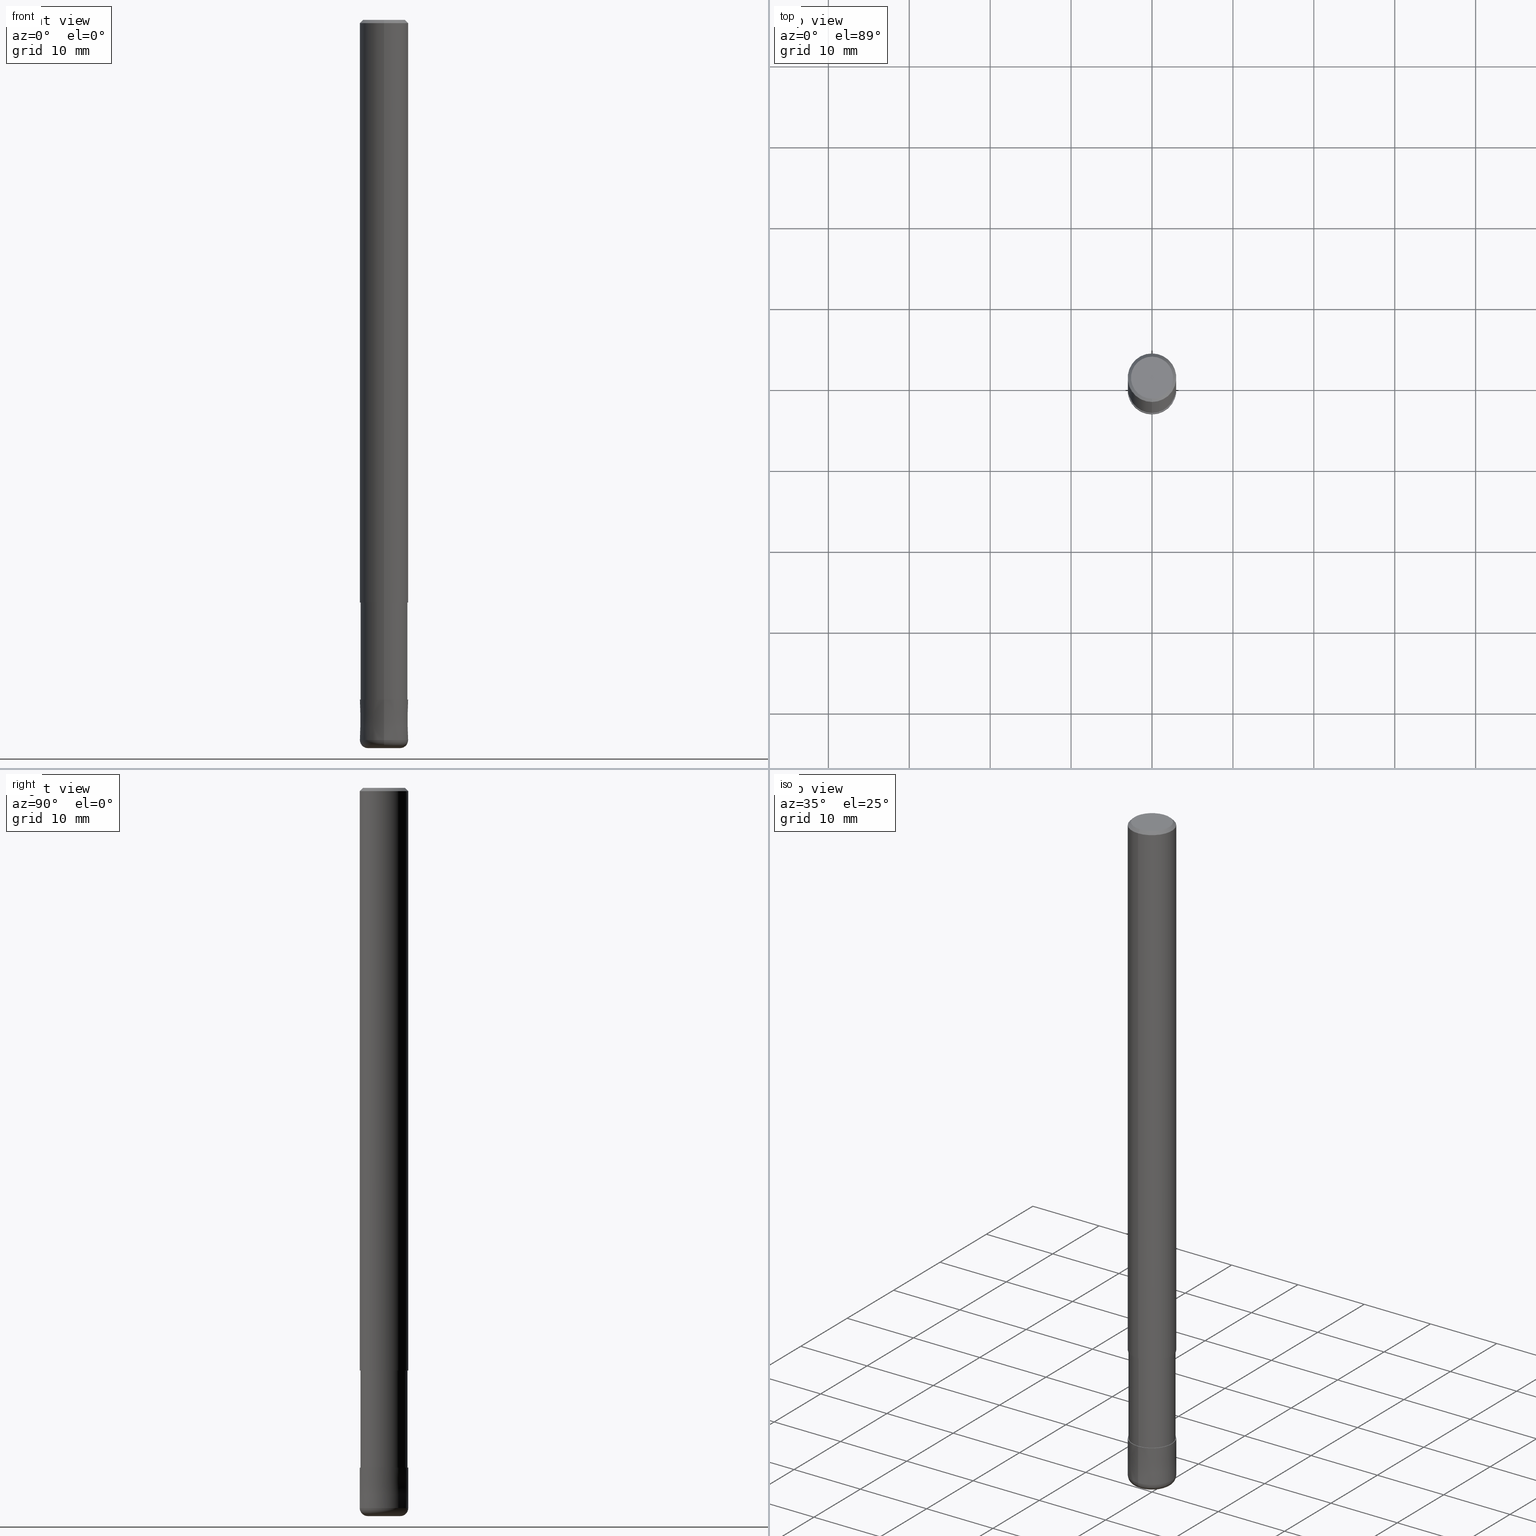
[diagram: canonical four-view strip — front | top / right | iso, engineering-drawing reading convention]
A machine part, canonical four-view strip (front | top / right | iso — engineering-drawing reading convention). The complete STEP part file that produces these views, byte-faithful:
ISO-10303-21;
HEADER;
FILE_DESCRIPTION(('no description'),'unknown implementation level');
FILE_NAME('HRRS4060-10-18-Huellk.stp','  ',('CIMSOURCE GmbH'),('CADClick - KiM GmbH - www.kimweb.de'),'unknown preprocess','ACIS','unknown authorization');
FILE_SCHEMA(('automotive_design'));
ENDSEC;
DATA;
#1=MECHANICAL_DESIGN_GEOMETRIC_PRESENTATION_REPRESENTATION(' ',(#14,#15,#16,#17,#18,#19,#20,#21,#22,#23,#24,#25,#26,#27,#28,#29,#30,#31,#32,#33,#34,#35,#36,#37,#38,#39,#40,#41,#42,#43,#44,#45,#46,#47,#48,#49,#50,#51,#52,#53,#54,#55,#56,#57,#58,#59,#60,#61,#62,#63,#64,#65,#66,#67,#68,#69,#70,#71,#72),#10);
#2=PRODUCT_DEFINITION_CONTEXT('',#73,'design');
#3=APPLICATION_PROTOCOL_DEFINITION('INTERNATIONAL STANDARD','automotive_design',1994,#73);
#4=PRODUCT_CATEGORY_RELATIONSHIP('NONE','NONE',#74,#75);
#5=SHAPE_DEFINITION_REPRESENTATION(#76,#77);
#6=PRODUCT_DEFINITION_CONTEXT('',#78,'design');
#7=APPLICATION_PROTOCOL_DEFINITION('INTERNATIONAL STANDARD','automotive_design',1994,#78);
#8=PRODUCT_CATEGORY_RELATIONSHIP('NONE','NONE',#79,#80);
#9=SHAPE_DEFINITION_REPRESENTATION(#81,#82);
#10= (GEOMETRIC_REPRESENTATION_CONTEXT(3)GLOBAL_UNCERTAINTY_ASSIGNED_CONTEXT((#85))GLOBAL_UNIT_ASSIGNED_CONTEXT((#87,#88,#89))REPRESENTATION_CONTEXT('NONE','WORKSPACE'));
#14=STYLED_ITEM('',(#91),#92);
#15=STYLED_ITEM('',(#93),#94);
#16=STYLED_ITEM('',(#95),#96);
#17=STYLED_ITEM('',(#97),#98);
#18=STYLED_ITEM('',(#99),#100);
#19=STYLED_ITEM('',(#101),#102);
#20=STYLED_ITEM('',(#103),#104);
#21=STYLED_ITEM('',(#105),#106);
#22=STYLED_ITEM('',(#107),#108);
#23=STYLED_ITEM('',(#109),#110);
#24=STYLED_ITEM('',(#111),#112);
#25=STYLED_ITEM('',(#113),#114);
#26=STYLED_ITEM('',(#115),#116);
#27=STYLED_ITEM('',(#117),#118);
#28=STYLED_ITEM('',(#119),#120);
#29=STYLED_ITEM('',(#121),#122);
#30=STYLED_ITEM('',(#123),#124);
#31=STYLED_ITEM('',(#125),#126);
#32=STYLED_ITEM('',(#127),#128);
#33=STYLED_ITEM('',(#129),#130);
#34=STYLED_ITEM('',(#131),#132);
#35=STYLED_ITEM('',(#133),#134);
#36=STYLED_ITEM('',(#135),#136);
#37=STYLED_ITEM('',(#137),#138);
#38=STYLED_ITEM('',(#139),#140);
#39=STYLED_ITEM('',(#141),#142);
#40=STYLED_ITEM('',(#143),#144);
#41=STYLED_ITEM('',(#145),#146);
#42=STYLED_ITEM('',(#147),#148);
#43=STYLED_ITEM('',(#149),#150);
#44=STYLED_ITEM('',(#151),#152);
#45=STYLED_ITEM('',(#153),#154);
#46=STYLED_ITEM('',(#155),#156);
#47=STYLED_ITEM('',(#157),#158);
#48=STYLED_ITEM('',(#159),#160);
#49=STYLED_ITEM('',(#161),#162);
#50=STYLED_ITEM('',(#163),#164);
#51=STYLED_ITEM('',(#165),#166);
#52=STYLED_ITEM('',(#167),#168);
#53=STYLED_ITEM('',(#169),#170);
#54=STYLED_ITEM('',(#171),#172);
#55=STYLED_ITEM('',(#173),#174);
#56=STYLED_ITEM('',(#175),#176);
#57=STYLED_ITEM('',(#177),#178);
#58=STYLED_ITEM('',(#179),#180);
#59=STYLED_ITEM('',(#181),#182);
#60=STYLED_ITEM('',(#183),#184);
#61=STYLED_ITEM('',(#185),#186);
#62=STYLED_ITEM('',(#187),#188);
#63=STYLED_ITEM('',(#189),#190);
#64=STYLED_ITEM('',(#191),#192);
#65=STYLED_ITEM('',(#193),#194);
#66=STYLED_ITEM('',(#195),#196);
#67=STYLED_ITEM('',(#197),#198);
#68=STYLED_ITEM('',(#199),#200);
#69=STYLED_ITEM('',(#201),#202);
#70=STYLED_ITEM('',(#203),#204);
#71=STYLED_ITEM('',(#205),#206);
#72=STYLED_ITEM('',(#207),#208);
#73=APPLICATION_CONTEXT(' ');
#74=PRODUCT_CATEGORY('part','NONE');
#75=PRODUCT_RELATED_PRODUCT_CATEGORY('detail',' ',(#209));
#76=PRODUCT_DEFINITION_SHAPE('NONE','NONE',#210);
#77=ADVANCED_BREP_SHAPE_REPRESENTATION('1',(#146,#211),#10);
#78=APPLICATION_CONTEXT(' ');
#79=PRODUCT_CATEGORY('part','NONE');
#80=PRODUCT_RELATED_PRODUCT_CATEGORY('detail',' ',(#212));
#81=PRODUCT_DEFINITION_SHAPE('NONE','NONE',#213);
#82=ADVANCED_BREP_SHAPE_REPRESENTATION('2',(#94,#214),#10);
#85=UNCERTAINTY_MEASURE_WITH_UNIT(LENGTH_MEASURE(1.0E-006),#87,'','');
#87= (CONVERSION_BASED_UNIT('MILLIMETRE',#217)LENGTH_UNIT()NAMED_UNIT(#220));
#88= (NAMED_UNIT(#222)PLANE_ANGLE_UNIT()SI_UNIT($,.RADIAN.));
#89= (NAMED_UNIT(#222)SOLID_ANGLE_UNIT()SI_UNIT($,.STERADIAN.));
#91=PRESENTATION_STYLE_ASSIGNMENT((#228));
#92=EDGE_CURVE('',#142,#110,#229,.T.);
#93=PRESENTATION_STYLE_ASSIGNMENT((#230));
#94=MANIFOLD_SOLID_BREP('2',#231);
#95=PRESENTATION_STYLE_ASSIGNMENT((#232));
#96=EDGE_CURVE('',#136,#186,#233,.T.);
#97=PRESENTATION_STYLE_ASSIGNMENT((#234));
#98=ADVANCED_FACE('',(#235),#236,.T.);
#99=PRESENTATION_STYLE_ASSIGNMENT((#237));
#100=ADVANCED_FACE('',(#238),#239,.T.);
#101=PRESENTATION_STYLE_ASSIGNMENT((#240));
#102=EDGE_CURVE('',#118,#136,#241,.T.);
#103=PRESENTATION_STYLE_ASSIGNMENT((#242));
#104=EDGE_CURVE('',#166,#116,#243,.T.);
#105=PRESENTATION_STYLE_ASSIGNMENT((#244));
#106=ADVANCED_FACE('',(#245),#246,.T.);
#107=PRESENTATION_STYLE_ASSIGNMENT((#247));
#108=EDGE_CURVE('',#120,#176,#248,.T.);
#109=PRESENTATION_STYLE_ASSIGNMENT((#249));
#110=VERTEX_POINT('',#250);
#111=PRESENTATION_STYLE_ASSIGNMENT((#251));
#112=VERTEX_POINT('',#252);
#113=PRESENTATION_STYLE_ASSIGNMENT((#253));
#114=EDGE_CURVE('',#110,#120,#254,.T.);
#115=PRESENTATION_STYLE_ASSIGNMENT((#255));
#116=VERTEX_POINT('',#256);
#117=PRESENTATION_STYLE_ASSIGNMENT((#257));
#118=VERTEX_POINT('',#258);
#119=PRESENTATION_STYLE_ASSIGNMENT((#259));
#120=VERTEX_POINT('',#260);
#121=PRESENTATION_STYLE_ASSIGNMENT((#261));
#122=EDGE_CURVE('',#166,#160,#262,.T.);
#123=PRESENTATION_STYLE_ASSIGNMENT((#263));
#124=ADVANCED_FACE('',(#264),#265,.T.);
#125=PRESENTATION_STYLE_ASSIGNMENT((#266));
#126=ADVANCED_FACE('',(#267),#268,.T.);
#127=PRESENTATION_STYLE_ASSIGNMENT((#269));
#128=EDGE_CURVE('',#176,#142,#270,.T.);
#129=PRESENTATION_STYLE_ASSIGNMENT((#271));
#130=EDGE_CURVE('',#116,#198,#272,.T.);
#131=PRESENTATION_STYLE_ASSIGNMENT((#273));
#132=EDGE_CURVE('',#112,#172,#274,.T.);
#133=PRESENTATION_STYLE_ASSIGNMENT((#275));
#134=EDGE_CURVE('',#160,#162,#276,.T.);
#135=PRESENTATION_STYLE_ASSIGNMENT((#277));
#136=VERTEX_POINT('',#278);
#137=PRESENTATION_STYLE_ASSIGNMENT((#279));
#138=ADVANCED_FACE('',(#280,#281),#282,.T.);
#139=PRESENTATION_STYLE_ASSIGNMENT((#283));
#140=EDGE_CURVE('',#160,#166,#284,.T.);
#141=PRESENTATION_STYLE_ASSIGNMENT((#285));
#142=VERTEX_POINT('',#286);
#143=PRESENTATION_STYLE_ASSIGNMENT((#287));
#144=ADVANCED_FACE('',(#288),#289,.T.);
#145=PRESENTATION_STYLE_ASSIGNMENT((#290));
#146=MANIFOLD_SOLID_BREP('1',#291);
#147=PRESENTATION_STYLE_ASSIGNMENT((#292));
#148=EDGE_CURVE('',#152,#172,#293,.T.);
#149=PRESENTATION_STYLE_ASSIGNMENT((#294));
#150=EDGE_CURVE('',#198,#160,#295,.T.);
#151=PRESENTATION_STYLE_ASSIGNMENT((#296));
#152=VERTEX_POINT('',#297);
#153=PRESENTATION_STYLE_ASSIGNMENT((#298));
#154=ADVANCED_FACE('',(#299),#300,.T.);
#155=PRESENTATION_STYLE_ASSIGNMENT((#301));
#156=ADVANCED_FACE('',(#302),#303,.T.);
#157=PRESENTATION_STYLE_ASSIGNMENT((#304));
#158=EDGE_CURVE('',#174,#166,#305,.T.);
#159=PRESENTATION_STYLE_ASSIGNMENT((#306));
#160=VERTEX_POINT('',#307);
#161=PRESENTATION_STYLE_ASSIGNMENT((#308));
#162=VERTEX_POINT('',#309);
#163=PRESENTATION_STYLE_ASSIGNMENT((#310));
#164=EDGE_CURVE('',#112,#186,#311,.T.);
#165=PRESENTATION_STYLE_ASSIGNMENT((#312));
#166=VERTEX_POINT('',#313);
#167=PRESENTATION_STYLE_ASSIGNMENT((#314));
#168=ADVANCED_FACE('',(#315),#316,.T.);
#169=PRESENTATION_STYLE_ASSIGNMENT((#317));
#170=EDGE_CURVE('',#186,#152,#318,.T.);
#171=PRESENTATION_STYLE_ASSIGNMENT((#319));
#172=VERTEX_POINT('',#320);
#173=PRESENTATION_STYLE_ASSIGNMENT((#321));
#174=VERTEX_POINT('',#322);
#175=PRESENTATION_STYLE_ASSIGNMENT((#323));
#176=VERTEX_POINT('',#324);
#177=PRESENTATION_STYLE_ASSIGNMENT((#325));
#178=ADVANCED_FACE('',(#326),#327,.T.);
#179=PRESENTATION_STYLE_ASSIGNMENT((#328));
#180=EDGE_CURVE('',#174,#162,#329,.T.);
#181=PRESENTATION_STYLE_ASSIGNMENT((#330));
#182=EDGE_CURVE('',#152,#186,#331,.T.);
#183=PRESENTATION_STYLE_ASSIGNMENT((#332));
#184=EDGE_CURVE('',#162,#174,#333,.T.);
#185=PRESENTATION_STYLE_ASSIGNMENT((#334));
#186=VERTEX_POINT('',#335);
#187=PRESENTATION_STYLE_ASSIGNMENT((#336));
#188=ADVANCED_FACE('',(#337),#338,.T.);
#189=PRESENTATION_STYLE_ASSIGNMENT((#339));
#190=ADVANCED_FACE('',(#340),#341,.T.);
#191=PRESENTATION_STYLE_ASSIGNMENT((#342));
#192=EDGE_CURVE('',#176,#120,#343,.T.);
#193=PRESENTATION_STYLE_ASSIGNMENT((#344));
#194=ADVANCED_FACE('',(#345),#346,.T.);
#195=PRESENTATION_STYLE_ASSIGNMENT((#347));
#196=ADVANCED_FACE('',(#348),#349,.T.);
#197=PRESENTATION_STYLE_ASSIGNMENT((#350));
#198=VERTEX_POINT('',#351);
#199=PRESENTATION_STYLE_ASSIGNMENT((#352));
#200=EDGE_CURVE('',#198,#116,#353,.T.);
#201=PRESENTATION_STYLE_ASSIGNMENT((#354));
#202=EDGE_CURVE('',#152,#118,#355,.T.);
#203=PRESENTATION_STYLE_ASSIGNMENT((#356));
#204=EDGE_CURVE('',#110,#142,#357,.T.);
#205=PRESENTATION_STYLE_ASSIGNMENT((#358));
#206=EDGE_CURVE('',#172,#112,#359,.T.);
#207=PRESENTATION_STYLE_ASSIGNMENT((#360));
#208=EDGE_CURVE('',#136,#118,#361,.T.);
#209=PRODUCT('1','1','PART-1-DESC',(#362));
#210=PRODUCT_DEFINITION('NONE','NONE',#363,#2);
#211=AXIS2_PLACEMENT_3D('',#364,#365,#366);
#212=PRODUCT('2','2','PART-2-DESC',(#367));
#213=PRODUCT_DEFINITION('NONE','NONE',#368,#6);
#214=AXIS2_PLACEMENT_3D('',#369,#370,#371);
#217=LENGTH_MEASURE_WITH_UNIT(LENGTH_MEASURE(1.0),#372);
#220=DIMENSIONAL_EXPONENTS(1.0,0.0,0.0,0.0,0.0,0.0,0.0);
#222=DIMENSIONAL_EXPONENTS(0.0,0.0,0.0,0.0,0.0,0.0,0.0);
#228=CURVE_STYLE('',#373,POSITIVE_LENGTH_MEASURE(1.0E-006),#374);
#229=CIRCLE('',#375,2.90995);
#230=SURFACE_STYLE_USAGE(.BOTH.,#376);
#231=CLOSED_SHELL('',(#168,#144,#178,#124,#100,#194));
#232=CURVE_STYLE('',#377,POSITIVE_LENGTH_MEASURE(1.0E-006),#378);
#233=LINE('',#379,#380);
#234=SURFACE_STYLE_USAGE(.BOTH.,#381);
#235=FACE_OUTER_BOUND('',#382,.T.);
#236=PLANE('',#383);
#237=SURFACE_STYLE_USAGE(.BOTH.,#384);
#238=FACE_OUTER_BOUND('',#385,.T.);
#239=TOROIDAL_SURFACE('',#386,2.0,1.0);
#240=CURVE_STYLE('',#387,POSITIVE_LENGTH_MEASURE(1.0E-006),#388);
#241=CIRCLE('',#389,2.9999);
#242=CURVE_STYLE('',#390,POSITIVE_LENGTH_MEASURE(1.0E-006),#391);
#243=LINE('',#392,#393);
#244=SURFACE_STYLE_USAGE(.BOTH.,#394);
#245=FACE_OUTER_BOUND('',#395,.T.);
#246=CYLINDRICAL_SURFACE('',#396,2.90995);
#247=CURVE_STYLE('',#397,POSITIVE_LENGTH_MEASURE(1.0E-006),#398);
#248=CIRCLE('',#399,2.90995);
#249=POINT_STYLE(' ',#400,POSITIVE_LENGTH_MEASURE(1.0E-006),#401);
#250=CARTESIAN_POINT('',(0.0,2.90995,-72.0));
#251=POINT_STYLE(' ',#402,POSITIVE_LENGTH_MEASURE(1.0E-006),#403);
#252=CARTESIAN_POINT('',(0.0,2.0,-90.0));
#253=CURVE_STYLE('',#404,POSITIVE_LENGTH_MEASURE(1.0E-006),#405);
#254=LINE('',#406,#407);
#255=POINT_STYLE(' ',#408,POSITIVE_LENGTH_MEASURE(1.0E-006),#409);
#256=CARTESIAN_POINT('',(3.18397651993818E-016,-2.6,0.0));
#257=POINT_STYLE(' ',#410,POSITIVE_LENGTH_MEASURE(1.0E-006),#411);
#258=CARTESIAN_POINT('',(3.67369660083175E-016,-2.9999,-84.0));
#259=POINT_STYLE(' ',#412,POSITIVE_LENGTH_MEASURE(1.0E-006),#413);
#260=CARTESIAN_POINT('',(0.0,2.90995,-84.0));
#261=CURVE_STYLE('',#414,POSITIVE_LENGTH_MEASURE(1.0E-006),#415);
#262=CIRCLE('',#416,3.0);
#263=SURFACE_STYLE_USAGE(.BOTH.,#417);
#264=FACE_OUTER_BOUND('',#418,.T.);
#265=CONICAL_SURFACE('',#419,2.99995,1.99999999973755E-005);
#266=SURFACE_STYLE_USAGE(.BOTH.,#420);
#267=FACE_OUTER_BOUND('',#421,.T.);
#268=PLANE('',#422);
#269=CURVE_STYLE('',#423,POSITIVE_LENGTH_MEASURE(1.0E-006),#424);
#270=LINE('',#425,#426);
#271=CURVE_STYLE('',#427,POSITIVE_LENGTH_MEASURE(1.0E-006),#428);
#272=CIRCLE('',#429,2.6);
#273=CURVE_STYLE('',#430,POSITIVE_LENGTH_MEASURE(1.0E-006),#431);
#274=CIRCLE('',#432,2.0);
#275=CURVE_STYLE('',#433,POSITIVE_LENGTH_MEASURE(1.0E-006),#434);
#276=LINE('',#435,#436);
#277=POINT_STYLE(' ',#437,POSITIVE_LENGTH_MEASURE(1.0E-006),#438);
#278=CARTESIAN_POINT('',(0.0,2.9999,-84.0));
#279=SURFACE_STYLE_USAGE(.BOTH.,#439);
#280=FACE_OUTER_BOUND('',#440,.T.);
#281=FACE_BOUND('',#441,.T.);
#282=PLANE('',#442);
#283=CURVE_STYLE('',#443,POSITIVE_LENGTH_MEASURE(1.0E-006),#444);
#284=CIRCLE('',#445,3.0);
#285=POINT_STYLE(' ',#446,POSITIVE_LENGTH_MEASURE(1.0E-006),#447);
#286=CARTESIAN_POINT('',(3.56354325930543E-016,-2.90995,-72.0));
#287=SURFACE_STYLE_USAGE(.BOTH.,#448);
#288=FACE_OUTER_BOUND('',#449,.T.);
#289=CONICAL_SURFACE('',#450,2.99995,1.99999999973755E-005);
#290=SURFACE_STYLE_USAGE(.BOTH.,#451);
#291=CLOSED_SHELL('',(#106,#188,#154,#138,#98,#156,#190,#196,#126));
#292=CURVE_STYLE('',#452,POSITIVE_LENGTH_MEASURE(1.0E-006),#453);
#293=CIRCLE('',#454,1.0);
#294=CURVE_STYLE('',#455,POSITIVE_LENGTH_MEASURE(1.0E-006),#456);
#295=LINE('',#457,#458);
#296=POINT_STYLE(' ',#459,POSITIVE_LENGTH_MEASURE(1.0E-006),#460);
#297=CARTESIAN_POINT('',(3.67381906146713E-016,-3.0,-89.0));
#298=SURFACE_STYLE_USAGE(.BOTH.,#461);
#299=FACE_OUTER_BOUND('',#462,.T.);
#300=CONICAL_SURFACE('',#463,2.8,0.785398163397441);
#301=SURFACE_STYLE_USAGE(.BOTH.,#464);
#302=FACE_OUTER_BOUND('',#465,.T.);
#303=CONICAL_SURFACE('',#466,2.8,0.785398163397441);
#304=CURVE_STYLE('',#467,POSITIVE_LENGTH_MEASURE(1.0E-006),#468);
#305=LINE('',#469,#470);
#306=POINT_STYLE(' ',#471,POSITIVE_LENGTH_MEASURE(1.0E-006),#472);
#307=CARTESIAN_POINT('',(0.0,3.0,-0.400000000000006));
#308=POINT_STYLE(' ',#473,POSITIVE_LENGTH_MEASURE(1.0E-006),#474);
#309=CARTESIAN_POINT('',(0.0,3.0,-72.0));
#310=CURVE_STYLE('',#475,POSITIVE_LENGTH_MEASURE(1.0E-006),#476);
#311=CIRCLE('',#477,1.0);
#312=POINT_STYLE(' ',#478,POSITIVE_LENGTH_MEASURE(1.0E-006),#479);
#313=CARTESIAN_POINT('',(3.67381906146713E-016,-3.0,-0.400000000000006));
#314=SURFACE_STYLE_USAGE(.BOTH.,#480);
#315=FACE_OUTER_BOUND('',#481,.T.);
#316=TOROIDAL_SURFACE('',#482,2.0,1.0);
#317=CURVE_STYLE('',#483,POSITIVE_LENGTH_MEASURE(1.0E-006),#484);
#318=CIRCLE('',#485,3.0);
#319=POINT_STYLE(' ',#486,POSITIVE_LENGTH_MEASURE(1.0E-006),#487);
#320=CARTESIAN_POINT('',(2.44921270764475E-016,-2.0,-90.0));
#321=POINT_STYLE(' ',#488,POSITIVE_LENGTH_MEASURE(1.0E-006),#489);
#322=CARTESIAN_POINT('',(3.67381906146713E-016,-3.0,-72.0));
#323=POINT_STYLE(' ',#490,POSITIVE_LENGTH_MEASURE(1.0E-006),#491);
#324=CARTESIAN_POINT('',(3.56354325930543E-016,-2.90995,-84.0));
#325=SURFACE_STYLE_USAGE(.BOTH.,#492);
#326=FACE_OUTER_BOUND('',#493,.T.);
#327=PLANE('',#494);
#328=CURVE_STYLE('',#495,POSITIVE_LENGTH_MEASURE(1.0E-006),#496);
#329=CIRCLE('',#497,3.0);
#330=CURVE_STYLE('',#498,POSITIVE_LENGTH_MEASURE(1.0E-006),#499);
#331=CIRCLE('',#500,3.0);
#332=CURVE_STYLE('',#501,POSITIVE_LENGTH_MEASURE(1.0E-006),#502);
#333=CIRCLE('',#503,3.0);
#334=POINT_STYLE(' ',#504,POSITIVE_LENGTH_MEASURE(1.0E-006),#505);
#335=CARTESIAN_POINT('',(0.0,3.0,-89.0));
#336=SURFACE_STYLE_USAGE(.BOTH.,#506);
#337=FACE_OUTER_BOUND('',#507,.T.);
#338=CYLINDRICAL_SURFACE('',#508,3.0);
#339=SURFACE_STYLE_USAGE(.BOTH.,#509);
#340=FACE_OUTER_BOUND('',#510,.T.);
#341=CYLINDRICAL_SURFACE('',#511,3.0);
#342=CURVE_STYLE('',#512,POSITIVE_LENGTH_MEASURE(1.0E-006),#513);
#343=CIRCLE('',#514,2.90995);
#344=SURFACE_STYLE_USAGE(.BOTH.,#515);
#345=FACE_OUTER_BOUND('',#516,.T.);
#346=PLANE('',#517);
#347=SURFACE_STYLE_USAGE(.BOTH.,#518);
#348=FACE_OUTER_BOUND('',#519,.T.);
#349=CYLINDRICAL_SURFACE('',#520,2.90995);
#350=POINT_STYLE(' ',#521,POSITIVE_LENGTH_MEASURE(1.0E-006),#522);
#351=CARTESIAN_POINT('',(0.0,2.6,0.0));
#352=CURVE_STYLE('',#523,POSITIVE_LENGTH_MEASURE(1.0E-006),#524);
#353=CIRCLE('',#525,2.6);
#354=CURVE_STYLE('',#526,POSITIVE_LENGTH_MEASURE(1.0E-006),#527);
#355=LINE('',#528,#529);
#356=CURVE_STYLE('',#530,POSITIVE_LENGTH_MEASURE(1.0E-006),#531);
#357=CIRCLE('',#532,2.90995);
#358=CURVE_STYLE('',#533,POSITIVE_LENGTH_MEASURE(1.0E-006),#534);
#359=CIRCLE('',#535,2.0);
#360=CURVE_STYLE('',#536,POSITIVE_LENGTH_MEASURE(1.0E-006),#537);
#361=CIRCLE('',#538,2.9999);
#362=PRODUCT_CONTEXT('',#73,'mechanical');
#363=PRODUCT_DEFINITION_FORMATION_WITH_SPECIFIED_SOURCE(' ','NONE',#209,.NOT_KNOWN.);
#364=CARTESIAN_POINT('',(0.0,0.0,0.0));
#365=DIRECTION('',(0.0,0.0,1.0));
#366=DIRECTION('',(1.0,0.0,0.0));
#367=PRODUCT_CONTEXT('',#78,'mechanical');
#368=PRODUCT_DEFINITION_FORMATION_WITH_SPECIFIED_SOURCE(' ','NONE',#212,.NOT_KNOWN.);
#369=CARTESIAN_POINT('',(0.0,0.0,0.0));
#370=DIRECTION('',(0.0,0.0,1.0));
#371=DIRECTION('',(1.0,0.0,0.0));
#372= (NAMED_UNIT(#220)LENGTH_UNIT()SI_UNIT(.MILLI.,.METRE.));
#373=DRAUGHTING_PRE_DEFINED_CURVE_FONT('continuous');
#374=COLOUR_RGB('',0.498039215803146,0.498039215803146,0.498039215803146);
#375=AXIS2_PLACEMENT_3D('',#540,#541,#542);
#376=SURFACE_SIDE_STYLE('',(#543));
#377=DRAUGHTING_PRE_DEFINED_CURVE_FONT('continuous');
#378=COLOUR_RGB('',0.800000011920929,0.800000011920929,0.800000011920929);
#379=CARTESIAN_POINT('',(-3.67375783114944E-016,2.99995,-86.5));
#380=VECTOR('',#544,1.0);
#381=SURFACE_SIDE_STYLE('',(#545));
#382=EDGE_LOOP('',(#546,#547));
#383=AXIS2_PLACEMENT_3D('',#548,#549,#550);
#384=SURFACE_SIDE_STYLE('',(#551));
#385=EDGE_LOOP('',(#552,#553,#554,#555));
#386=AXIS2_PLACEMENT_3D('',#556,#557,#558);
#387=DRAUGHTING_PRE_DEFINED_CURVE_FONT('continuous');
#388=COLOUR_RGB('',0.800000011920929,0.800000011920929,0.800000011920929);
#389=AXIS2_PLACEMENT_3D('',#559,#560,#561);
#390=DRAUGHTING_PRE_DEFINED_CURVE_FONT('continuous');
#391=COLOUR_RGB('',0.498039215803146,0.498039215803146,0.498039215803146);
#392=CARTESIAN_POINT('',(3.42889779070266E-016,-2.8,-0.200000000000003));
#393=VECTOR('',#562,1.0);
#394=SURFACE_SIDE_STYLE('',(#563));
#395=EDGE_LOOP('',(#564,#565,#566,#567));
#396=AXIS2_PLACEMENT_3D('',#568,#569,#570);
#397=DRAUGHTING_PRE_DEFINED_CURVE_FONT('continuous');
#398=COLOUR_RGB('',0.498039215803146,0.498039215803146,0.498039215803146);
#399=AXIS2_PLACEMENT_3D('',#571,#572,#573);
#400=PRE_DEFINED_MARKER('');
#401=COLOUR_RGB('',0.498039215803146,0.498039215803146,0.498039215803146);
#402=PRE_DEFINED_MARKER('');
#403=COLOUR_RGB('',0.800000011920929,0.800000011920929,0.800000011920929);
#404=DRAUGHTING_PRE_DEFINED_CURVE_FONT('continuous');
#405=COLOUR_RGB('',0.498039215803146,0.498039215803146,0.498039215803146);
#406=CARTESIAN_POINT('',(-3.56354325930543E-016,2.90995,-78.0));
#407=VECTOR('',#574,1.0);
#408=PRE_DEFINED_MARKER('');
#409=COLOUR_RGB('',0.498039215803146,0.498039215803146,0.498039215803146);
#410=PRE_DEFINED_MARKER('');
#411=COLOUR_RGB('',0.800000011920929,0.800000011920929,0.800000011920929);
#412=PRE_DEFINED_MARKER('');
#413=COLOUR_RGB('',0.498039215803146,0.498039215803146,0.498039215803146);
#414=DRAUGHTING_PRE_DEFINED_CURVE_FONT('continuous');
#415=COLOUR_RGB('',0.498039215803146,0.498039215803146,0.498039215803146);
#416=AXIS2_PLACEMENT_3D('',#575,#576,#577);
#417=SURFACE_SIDE_STYLE('',(#578));
#418=EDGE_LOOP('',(#579,#580,#581,#582));
#419=AXIS2_PLACEMENT_3D('',#583,#584,#585);
#420=SURFACE_SIDE_STYLE('',(#586));
#421=EDGE_LOOP('',(#587,#588));
#422=AXIS2_PLACEMENT_3D('',#589,#590,#591);
#423=DRAUGHTING_PRE_DEFINED_CURVE_FONT('continuous');
#424=COLOUR_RGB('',0.498039215803146,0.498039215803146,0.498039215803146);
#425=CARTESIAN_POINT('',(3.56354325930543E-016,-2.90995,-78.0));
#426=VECTOR('',#592,1.0);
#427=DRAUGHTING_PRE_DEFINED_CURVE_FONT('continuous');
#428=COLOUR_RGB('',0.498039215803146,0.498039215803146,0.498039215803146);
#429=AXIS2_PLACEMENT_3D('',#593,#594,#595);
#430=DRAUGHTING_PRE_DEFINED_CURVE_FONT('continuous');
#431=COLOUR_RGB('',0.800000011920929,0.800000011920929,0.800000011920929);
#432=AXIS2_PLACEMENT_3D('',#596,#597,#598);
#433=DRAUGHTING_PRE_DEFINED_CURVE_FONT('continuous');
#434=COLOUR_RGB('',0.498039215803146,0.498039215803146,0.498039215803146);
#435=CARTESIAN_POINT('',(-3.67381906146713E-016,3.0,-36.2));
#436=VECTOR('',#599,1.0);
#437=PRE_DEFINED_MARKER('');
#438=COLOUR_RGB('',0.800000011920929,0.800000011920929,0.800000011920929);
#439=SURFACE_SIDE_STYLE('',(#600));
#440=EDGE_LOOP('',(#601,#602));
#441=EDGE_LOOP('',(#603,#604));
#442=AXIS2_PLACEMENT_3D('',#605,#606,#607);
#443=DRAUGHTING_PRE_DEFINED_CURVE_FONT('continuous');
#444=COLOUR_RGB('',0.498039215803146,0.498039215803146,0.498039215803146);
#445=AXIS2_PLACEMENT_3D('',#608,#609,#610);
#446=PRE_DEFINED_MARKER('');
#447=COLOUR_RGB('',0.498039215803146,0.498039215803146,0.498039215803146);
#448=SURFACE_SIDE_STYLE('',(#611));
#449=EDGE_LOOP('',(#612,#613,#614,#615));
#450=AXIS2_PLACEMENT_3D('',#616,#617,#618);
#451=SURFACE_SIDE_STYLE('',(#619));
#452=DRAUGHTING_PRE_DEFINED_CURVE_FONT('continuous');
#453=COLOUR_RGB('',0.800000011920929,0.800000011920929,0.800000011920929);
#454=AXIS2_PLACEMENT_3D('',#620,#621,#622);
#455=DRAUGHTING_PRE_DEFINED_CURVE_FONT('continuous');
#456=COLOUR_RGB('',0.498039215803146,0.498039215803146,0.498039215803146);
#457=CARTESIAN_POINT('',(-3.42889779070266E-016,2.8,-0.200000000000003));
#458=VECTOR('',#623,1.0);
#459=PRE_DEFINED_MARKER('');
#460=COLOUR_RGB('',0.800000011920929,0.800000011920929,0.800000011920929);
#461=SURFACE_SIDE_STYLE('',(#624));
#462=EDGE_LOOP('',(#625,#626,#627,#628));
#463=AXIS2_PLACEMENT_3D('',#629,#630,#631);
#464=SURFACE_SIDE_STYLE('',(#632));
#465=EDGE_LOOP('',(#633,#634,#635,#636));
#466=AXIS2_PLACEMENT_3D('',#637,#638,#639);
#467=DRAUGHTING_PRE_DEFINED_CURVE_FONT('continuous');
#468=COLOUR_RGB('',0.498039215803146,0.498039215803146,0.498039215803146);
#469=CARTESIAN_POINT('',(3.67381906146713E-016,-3.0,-36.2));
#470=VECTOR('',#640,1.0);
#471=PRE_DEFINED_MARKER('');
#472=COLOUR_RGB('',0.498039215803146,0.498039215803146,0.498039215803146);
#473=PRE_DEFINED_MARKER('');
#474=COLOUR_RGB('',0.498039215803146,0.498039215803146,0.498039215803146);
#475=DRAUGHTING_PRE_DEFINED_CURVE_FONT('continuous');
#476=COLOUR_RGB('',0.800000011920929,0.800000011920929,0.800000011920929);
#477=AXIS2_PLACEMENT_3D('',#641,#642,#643);
#478=PRE_DEFINED_MARKER('');
#479=COLOUR_RGB('',0.498039215803146,0.498039215803146,0.498039215803146);
#480=SURFACE_SIDE_STYLE('',(#644));
#481=EDGE_LOOP('',(#645,#646,#647,#648));
#482=AXIS2_PLACEMENT_3D('',#649,#650,#651);
#483=DRAUGHTING_PRE_DEFINED_CURVE_FONT('continuous');
#484=COLOUR_RGB('',0.800000011920929,0.800000011920929,0.800000011920929);
#485=AXIS2_PLACEMENT_3D('',#652,#653,#654);
#486=PRE_DEFINED_MARKER('');
#487=COLOUR_RGB('',0.800000011920929,0.800000011920929,0.800000011920929);
#488=PRE_DEFINED_MARKER('');
#489=COLOUR_RGB('',0.498039215803146,0.498039215803146,0.498039215803146);
#490=PRE_DEFINED_MARKER('');
#491=COLOUR_RGB('',0.498039215803146,0.498039215803146,0.498039215803146);
#492=SURFACE_SIDE_STYLE('',(#655));
#493=EDGE_LOOP('',(#656,#657));
#494=AXIS2_PLACEMENT_3D('',#658,#659,#660);
#495=DRAUGHTING_PRE_DEFINED_CURVE_FONT('continuous');
#496=COLOUR_RGB('',0.498039215803146,0.498039215803146,0.498039215803146);
#497=AXIS2_PLACEMENT_3D('',#661,#662,#663);
#498=DRAUGHTING_PRE_DEFINED_CURVE_FONT('continuous');
#499=COLOUR_RGB('',0.800000011920929,0.800000011920929,0.800000011920929);
#500=AXIS2_PLACEMENT_3D('',#664,#665,#666);
#501=DRAUGHTING_PRE_DEFINED_CURVE_FONT('continuous');
#502=COLOUR_RGB('',0.498039215803146,0.498039215803146,0.498039215803146);
#503=AXIS2_PLACEMENT_3D('',#667,#668,#669);
#504=PRE_DEFINED_MARKER('');
#505=COLOUR_RGB('',0.800000011920929,0.800000011920929,0.800000011920929);
#506=SURFACE_SIDE_STYLE('',(#670));
#507=EDGE_LOOP('',(#671,#672,#673,#674));
#508=AXIS2_PLACEMENT_3D('',#675,#676,#677);
#509=SURFACE_SIDE_STYLE('',(#678));
#510=EDGE_LOOP('',(#679,#680,#681,#682));
#511=AXIS2_PLACEMENT_3D('',#683,#684,#685);
#512=DRAUGHTING_PRE_DEFINED_CURVE_FONT('continuous');
#513=COLOUR_RGB('',0.498039215803146,0.498039215803146,0.498039215803146);
#514=AXIS2_PLACEMENT_3D('',#686,#687,#688);
#515=SURFACE_SIDE_STYLE('',(#689));
#516=EDGE_LOOP('',(#690,#691));
#517=AXIS2_PLACEMENT_3D('',#692,#693,#694);
#518=SURFACE_SIDE_STYLE('',(#695));
#519=EDGE_LOOP('',(#696,#697,#698,#699));
#520=AXIS2_PLACEMENT_3D('',#700,#701,#702);
#521=PRE_DEFINED_MARKER('');
#522=COLOUR_RGB('',0.498039215803146,0.498039215803146,0.498039215803146);
#523=DRAUGHTING_PRE_DEFINED_CURVE_FONT('continuous');
#524=COLOUR_RGB('',0.498039215803146,0.498039215803146,0.498039215803146);
#525=AXIS2_PLACEMENT_3D('',#703,#704,#705);
#526=DRAUGHTING_PRE_DEFINED_CURVE_FONT('continuous');
#527=COLOUR_RGB('',0.800000011920929,0.800000011920929,0.800000011920929);
#528=CARTESIAN_POINT('',(3.67375783114944E-016,-2.99995,-86.5));
#529=VECTOR('',#706,1.0);
#530=DRAUGHTING_PRE_DEFINED_CURVE_FONT('continuous');
#531=COLOUR_RGB('',0.498039215803146,0.498039215803146,0.498039215803146);
#532=AXIS2_PLACEMENT_3D('',#707,#708,#709);
#533=DRAUGHTING_PRE_DEFINED_CURVE_FONT('continuous');
#534=COLOUR_RGB('',0.800000011920929,0.800000011920929,0.800000011920929);
#535=AXIS2_PLACEMENT_3D('',#710,#711,#712);
#536=DRAUGHTING_PRE_DEFINED_CURVE_FONT('continuous');
#537=COLOUR_RGB('',0.800000011920929,0.800000011920929,0.800000011920929);
#538=AXIS2_PLACEMENT_3D('',#713,#714,#715);
#540=CARTESIAN_POINT('',(0.0,0.0,-72.0));
#541=DIRECTION('',(0.0,0.0,-1.0));
#542=DIRECTION('',(0.0,1.0,0.0));
#543=SURFACE_STYLE_FILL_AREA(#716);
#544=DIRECTION('',(-2.44921270716008E-021,1.99999999960422E-005,-0.9999999998));
#545=SURFACE_STYLE_FILL_AREA(#717);
#546=ORIENTED_EDGE('',*,*,#200,.F.);
#547=ORIENTED_EDGE('',*,*,#130,.F.);
#548=CARTESIAN_POINT('',(0.0,1.3,0.0));
#549=DIRECTION('',(-0.0,0.0,1.0));
#550=DIRECTION('',(0.0,-1.0,0.0));
#551=SURFACE_STYLE_FILL_AREA(#718);
#552=ORIENTED_EDGE('',*,*,#148,.T.);
#553=ORIENTED_EDGE('',*,*,#132,.F.);
#554=ORIENTED_EDGE('',*,*,#164,.T.);
#555=ORIENTED_EDGE('',*,*,#170,.T.);
#556=CARTESIAN_POINT('',(0.0,0.0,-89.0));
#557=DIRECTION('',(0.0,0.0,-1.0));
#558=DIRECTION('',(0.0,-1.0,0.0));
#559=CARTESIAN_POINT('',(0.0,0.0,-84.0));
#560=DIRECTION('',(0.0,0.0,-1.0));
#561=DIRECTION('',(0.0,1.0,0.0));
#562=DIRECTION('',(-8.65927457071929E-017,0.707106781186542,0.707106781186553));
#563=SURFACE_STYLE_FILL_AREA(#719);
#564=ORIENTED_EDGE('',*,*,#114,.F.);
#565=ORIENTED_EDGE('',*,*,#204,.T.);
#566=ORIENTED_EDGE('',*,*,#128,.F.);
#567=ORIENTED_EDGE('',*,*,#108,.F.);
#568=CARTESIAN_POINT('',(0.0,0.0,-78.0));
#569=DIRECTION('',(-0.0,-0.0,1.0));
#570=DIRECTION('',(0.0,1.0,0.0));
#571=CARTESIAN_POINT('',(0.0,0.0,-84.0));
#572=DIRECTION('',(0.0,0.0,-1.0));
#573=DIRECTION('',(0.0,1.0,0.0));
#574=DIRECTION('',(0.0,0.0,-1.0));
#575=CARTESIAN_POINT('',(0.0,0.0,-0.400000000000006));
#576=DIRECTION('',(0.0,0.0,-1.0));
#577=DIRECTION('',(0.0,1.0,0.0));
#578=SURFACE_STYLE_FILL_AREA(#720);
#579=ORIENTED_EDGE('',*,*,#96,.T.);
#580=ORIENTED_EDGE('',*,*,#182,.F.);
#581=ORIENTED_EDGE('',*,*,#202,.T.);
#582=ORIENTED_EDGE('',*,*,#102,.T.);
#583=CARTESIAN_POINT('',(0.0,0.0,-86.5));
#584=DIRECTION('',(0.0,-0.0,-1.0));
#585=DIRECTION('',(0.0,1.0,0.0));
#586=SURFACE_STYLE_FILL_AREA(#721);
#587=ORIENTED_EDGE('',*,*,#108,.T.);
#588=ORIENTED_EDGE('',*,*,#192,.T.);
#589=CARTESIAN_POINT('',(0.0,1.454975,-84.0));
#590=DIRECTION('',(0.0,0.0,-1.0));
#591=DIRECTION('',(0.0,1.0,0.0));
#592=DIRECTION('',(-0.0,-0.0,1.0));
#593=CARTESIAN_POINT('',(0.0,0.0,0.0));
#594=DIRECTION('',(0.0,0.0,-1.0));
#595=DIRECTION('',(0.0,1.0,0.0));
#596=CARTESIAN_POINT('',(0.0,0.0,-90.0));
#597=DIRECTION('',(0.0,0.0,-1.0));
#598=DIRECTION('',(0.0,1.0,0.0));
#599=DIRECTION('',(0.0,0.0,-1.0));
#600=SURFACE_STYLE_FILL_AREA(#722);
#601=ORIENTED_EDGE('',*,*,#184,.T.);
#602=ORIENTED_EDGE('',*,*,#180,.T.);
#603=ORIENTED_EDGE('',*,*,#204,.F.);
#604=ORIENTED_EDGE('',*,*,#92,.F.);
#605=CARTESIAN_POINT('',(0.0,1.5,-72.0));
#606=DIRECTION('',(0.0,0.0,-1.0));
#607=DIRECTION('',(0.0,1.0,0.0));
#608=CARTESIAN_POINT('',(0.0,0.0,-0.400000000000006));
#609=DIRECTION('',(0.0,0.0,-1.0));
#610=DIRECTION('',(0.0,1.0,0.0));
#611=SURFACE_STYLE_FILL_AREA(#723);
#612=ORIENTED_EDGE('',*,*,#96,.F.);
#613=ORIENTED_EDGE('',*,*,#208,.T.);
#614=ORIENTED_EDGE('',*,*,#202,.F.);
#615=ORIENTED_EDGE('',*,*,#170,.F.);
#616=CARTESIAN_POINT('',(0.0,0.0,-86.5));
#617=DIRECTION('',(0.0,-0.0,-1.0));
#618=DIRECTION('',(0.0,1.0,0.0));
#619=SURFACE_STYLE_FILL_AREA(#724);
#620=CARTESIAN_POINT('',(2.44921270764475E-016,-2.0,-89.0));
#621=DIRECTION('',(1.0,1.22460635382238E-016,0.0));
#622=DIRECTION('',(1.22460635382238E-016,-1.0,-0.0));
#623=DIRECTION('',(-8.65927457071929E-017,0.707106781186542,-0.707106781186553));
#624=SURFACE_STYLE_FILL_AREA(#725);
#625=ORIENTED_EDGE('',*,*,#150,.F.);
#626=ORIENTED_EDGE('',*,*,#200,.T.);
#627=ORIENTED_EDGE('',*,*,#104,.F.);
#628=ORIENTED_EDGE('',*,*,#140,.F.);
#629=CARTESIAN_POINT('',(0.0,0.0,-0.200000000000003));
#630=DIRECTION('',(0.0,-0.0,-1.0));
#631=DIRECTION('',(0.0,1.0,0.0));
#632=SURFACE_STYLE_FILL_AREA(#726);
#633=ORIENTED_EDGE('',*,*,#150,.T.);
#634=ORIENTED_EDGE('',*,*,#122,.F.);
#635=ORIENTED_EDGE('',*,*,#104,.T.);
#636=ORIENTED_EDGE('',*,*,#130,.T.);
#637=CARTESIAN_POINT('',(0.0,0.0,-0.200000000000003));
#638=DIRECTION('',(0.0,-0.0,-1.0));
#639=DIRECTION('',(0.0,1.0,0.0));
#640=DIRECTION('',(-0.0,-0.0,1.0));
#641=CARTESIAN_POINT('',(-2.44921270764475E-016,2.0,-89.0));
#642=DIRECTION('',(1.0,1.22460635382238E-016,0.0));
#643=DIRECTION('',(-1.22460635382238E-016,1.0,0.0));
#644=SURFACE_STYLE_FILL_AREA(#727);
#645=ORIENTED_EDGE('',*,*,#148,.F.);
#646=ORIENTED_EDGE('',*,*,#182,.T.);
#647=ORIENTED_EDGE('',*,*,#164,.F.);
#648=ORIENTED_EDGE('',*,*,#206,.F.);
#649=CARTESIAN_POINT('',(0.0,0.0,-89.0));
#650=DIRECTION('',(0.0,0.0,-1.0));
#651=DIRECTION('',(0.0,-1.0,0.0));
#652=CARTESIAN_POINT('',(0.0,0.0,-89.0));
#653=DIRECTION('',(0.0,0.0,-1.0));
#654=DIRECTION('',(0.0,1.0,0.0));
#655=SURFACE_STYLE_FILL_AREA(#728);
#656=ORIENTED_EDGE('',*,*,#208,.F.);
#657=ORIENTED_EDGE('',*,*,#102,.F.);
#658=CARTESIAN_POINT('',(0.0,1.49995,-84.0));
#659=DIRECTION('',(-0.0,0.0,1.0));
#660=DIRECTION('',(0.0,-1.0,0.0));
#661=CARTESIAN_POINT('',(0.0,0.0,-72.0));
#662=DIRECTION('',(0.0,0.0,-1.0));
#663=DIRECTION('',(0.0,1.0,0.0));
#664=CARTESIAN_POINT('',(0.0,0.0,-89.0));
#665=DIRECTION('',(0.0,0.0,-1.0));
#666=DIRECTION('',(0.0,1.0,0.0));
#667=CARTESIAN_POINT('',(0.0,0.0,-72.0));
#668=DIRECTION('',(0.0,0.0,-1.0));
#669=DIRECTION('',(0.0,1.0,0.0));
#670=SURFACE_STYLE_FILL_AREA(#729);
#671=ORIENTED_EDGE('',*,*,#134,.F.);
#672=ORIENTED_EDGE('',*,*,#140,.T.);
#673=ORIENTED_EDGE('',*,*,#158,.F.);
#674=ORIENTED_EDGE('',*,*,#184,.F.);
#675=CARTESIAN_POINT('',(0.0,0.0,-36.2));
#676=DIRECTION('',(-0.0,-0.0,1.0));
#677=DIRECTION('',(0.0,1.0,0.0));
#678=SURFACE_STYLE_FILL_AREA(#730);
#679=ORIENTED_EDGE('',*,*,#134,.T.);
#680=ORIENTED_EDGE('',*,*,#180,.F.);
#681=ORIENTED_EDGE('',*,*,#158,.T.);
#682=ORIENTED_EDGE('',*,*,#122,.T.);
#683=CARTESIAN_POINT('',(0.0,0.0,-36.2));
#684=DIRECTION('',(-0.0,-0.0,1.0));
#685=DIRECTION('',(0.0,1.0,0.0));
#686=CARTESIAN_POINT('',(0.0,0.0,-84.0));
#687=DIRECTION('',(0.0,0.0,-1.0));
#688=DIRECTION('',(0.0,1.0,0.0));
#689=SURFACE_STYLE_FILL_AREA(#731);
#690=ORIENTED_EDGE('',*,*,#132,.T.);
#691=ORIENTED_EDGE('',*,*,#206,.T.);
#692=CARTESIAN_POINT('',(0.0,1.0,-90.0));
#693=DIRECTION('',(0.0,0.0,-1.0));
#694=DIRECTION('',(0.0,1.0,0.0));
#695=SURFACE_STYLE_FILL_AREA(#732);
#696=ORIENTED_EDGE('',*,*,#114,.T.);
#697=ORIENTED_EDGE('',*,*,#192,.F.);
#698=ORIENTED_EDGE('',*,*,#128,.T.);
#699=ORIENTED_EDGE('',*,*,#92,.T.);
#700=CARTESIAN_POINT('',(0.0,0.0,-78.0));
#701=DIRECTION('',(-0.0,-0.0,1.0));
#702=DIRECTION('',(0.0,1.0,0.0));
#703=CARTESIAN_POINT('',(0.0,0.0,0.0));
#704=DIRECTION('',(0.0,0.0,-1.0));
#705=DIRECTION('',(0.0,1.0,0.0));
#706=DIRECTION('',(-2.44921270716008E-021,1.99999999960422E-005,0.9999999998));
#707=CARTESIAN_POINT('',(0.0,0.0,-72.0));
#708=DIRECTION('',(0.0,0.0,-1.0));
#709=DIRECTION('',(0.0,1.0,0.0));
#710=CARTESIAN_POINT('',(0.0,0.0,-90.0));
#711=DIRECTION('',(0.0,0.0,-1.0));
#712=DIRECTION('',(0.0,1.0,0.0));
#713=CARTESIAN_POINT('',(0.0,0.0,-84.0));
#714=DIRECTION('',(0.0,0.0,-1.0));
#715=DIRECTION('',(0.0,1.0,0.0));
#716=FILL_AREA_STYLE('',(#733));
#717=FILL_AREA_STYLE('',(#734));
#718=FILL_AREA_STYLE('',(#735));
#719=FILL_AREA_STYLE('',(#736));
#720=FILL_AREA_STYLE('',(#737));
#721=FILL_AREA_STYLE('',(#738));
#722=FILL_AREA_STYLE('',(#739));
#723=FILL_AREA_STYLE('',(#740));
#724=FILL_AREA_STYLE('',(#741));
#725=FILL_AREA_STYLE('',(#742));
#726=FILL_AREA_STYLE('',(#743));
#727=FILL_AREA_STYLE('',(#744));
#728=FILL_AREA_STYLE('',(#745));
#729=FILL_AREA_STYLE('',(#746));
#730=FILL_AREA_STYLE('',(#747));
#731=FILL_AREA_STYLE('',(#748));
#732=FILL_AREA_STYLE('',(#749));
#733=FILL_AREA_STYLE_COLOUR('',#750);
#734=FILL_AREA_STYLE_COLOUR('',#751);
#735=FILL_AREA_STYLE_COLOUR('',#752);
#736=FILL_AREA_STYLE_COLOUR('',#753);
#737=FILL_AREA_STYLE_COLOUR('',#754);
#738=FILL_AREA_STYLE_COLOUR('',#755);
#739=FILL_AREA_STYLE_COLOUR('',#756);
#740=FILL_AREA_STYLE_COLOUR('',#757);
#741=FILL_AREA_STYLE_COLOUR('',#758);
#742=FILL_AREA_STYLE_COLOUR('',#759);
#743=FILL_AREA_STYLE_COLOUR('',#760);
#744=FILL_AREA_STYLE_COLOUR('',#761);
#745=FILL_AREA_STYLE_COLOUR('',#762);
#746=FILL_AREA_STYLE_COLOUR('',#763);
#747=FILL_AREA_STYLE_COLOUR('',#764);
#748=FILL_AREA_STYLE_COLOUR('',#765);
#749=FILL_AREA_STYLE_COLOUR('',#766);
#750=COLOUR_RGB('',0.800000011920929,0.800000011920929,0.800000011920929);
#751=COLOUR_RGB('',0.498039215803146,0.498039215803146,0.498039215803146);
#752=COLOUR_RGB('',0.800000011920929,0.800000011920929,0.800000011920929);
#753=COLOUR_RGB('',0.498039215803146,0.498039215803146,0.498039215803146);
#754=COLOUR_RGB('',0.800000011920929,0.800000011920929,0.800000011920929);
#755=COLOUR_RGB('',0.498039215803146,0.498039215803146,0.498039215803146);
#756=COLOUR_RGB('',0.498039215803146,0.498039215803146,0.498039215803146);
#757=COLOUR_RGB('',0.800000011920929,0.800000011920929,0.800000011920929);
#758=COLOUR_RGB('',0.498039215803146,0.498039215803146,0.498039215803146);
#759=COLOUR_RGB('',0.498039215803146,0.498039215803146,0.498039215803146);
#760=COLOUR_RGB('',0.498039215803146,0.498039215803146,0.498039215803146);
#761=COLOUR_RGB('',0.800000011920929,0.800000011920929,0.800000011920929);
#762=COLOUR_RGB('',0.800000011920929,0.800000011920929,0.800000011920929);
#763=COLOUR_RGB('',0.498039215803146,0.498039215803146,0.498039215803146);
#764=COLOUR_RGB('',0.498039215803146,0.498039215803146,0.498039215803146);
#765=COLOUR_RGB('',0.800000011920929,0.800000011920929,0.800000011920929);
#766=COLOUR_RGB('',0.498039215803146,0.498039215803146,0.498039215803146);
#767=AXIS2_PLACEMENT_3D('PCS',#768,#769,#770);
#768=CARTESIAN_POINT('',(0.0,0.0,0.0));
#769=DIRECTION('',(0.0,0.0,1.0));
#770=DIRECTION('',(1.0,0.0,0.0));
#771=AXIS2_PLACEMENT_3D('CIP',#772,#773,#774);
#772=CARTESIAN_POINT('',(0.0,0.0,-90.0));
#773=DIRECTION('',(0.0,0.0,1.0));
#774=DIRECTION('',(1.0,0.0,0.0));
#775=AXIS2_PLACEMENT_3D('CRP',#776,#777,#778);
#776=CARTESIAN_POINT('',(-3.0,0.0,-90.0));
#777=DIRECTION('',(0.0,0.0,1.0));
#778=DIRECTION('',(1.0,0.0,0.0));
#779=AXIS2_PLACEMENT_3D('MCS',#780,#781,#782);
#780=CARTESIAN_POINT('',(0.0,0.0,-72.0));
#781=DIRECTION('',(0.0,0.0,1.0));
#782=DIRECTION('',(1.0,0.0,0.0));
#783=CONSTRUCTIVE_GEOMETRY_REPRESENTATION_RELATIONSHIP('coordinate systems',$,#77,#784);
#784=CONSTRUCTIVE_GEOMETRY_REPRESENTATION('coordinate systems',(#767,#771,#775,#779),#10);
ENDSEC;
END-ISO-10303-21;
